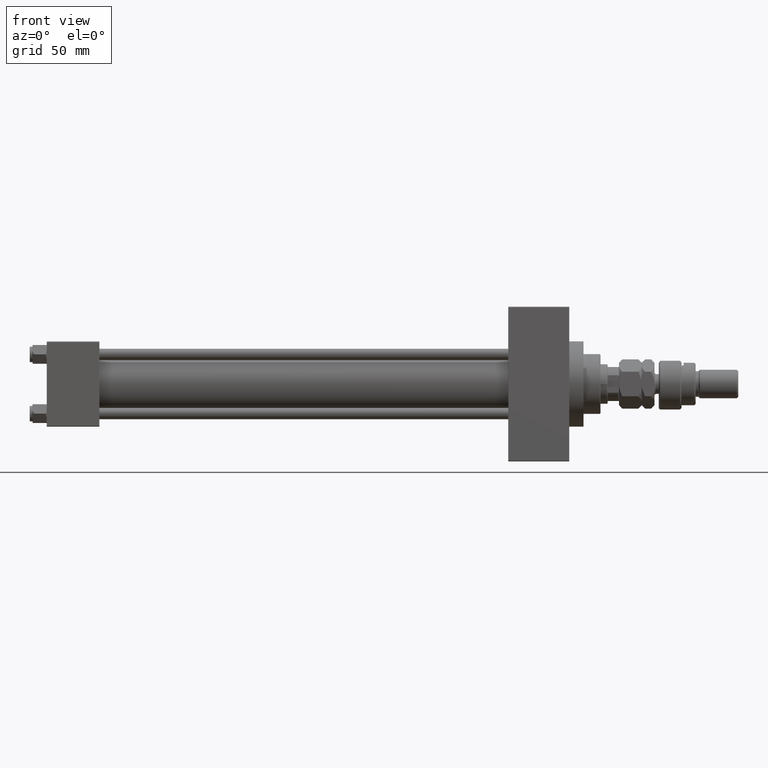
[diagram: clean part render]
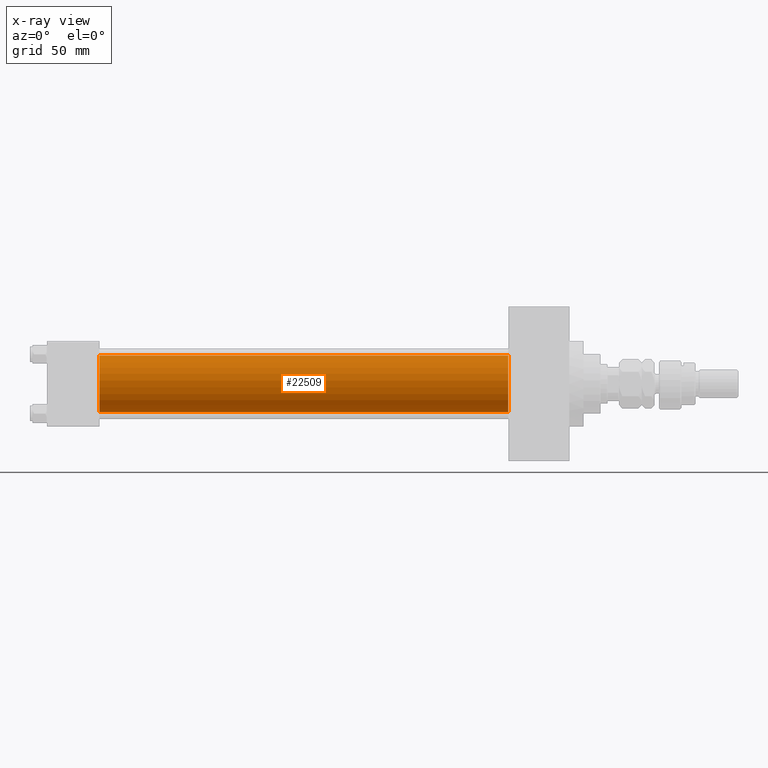
[diagram: x-ray — body ghosted, one internal face saturated and labeled with its STEP entity id]
A machine part, front view, then the same camera in x-ray: the body is ghosted and one INTERNAL B-rep face — a face not visible from any outside direction — is saturated and labeled: STEP entity #22509.
In plain terms, the highlighted cylindrical surface (edge-blend (fillet) strip) has radius 20 mm, axis along (-1, -0, -0).
Its self-contained STEP definition (entity closure, byte-faithful):
#512 = ORIENTED_EDGE ( 'NONE', *, *, #46772, .T. ) ;
#1368 = DIRECTION ( 'NONE',  ( -1.000000000000000000, -0.000000000000000000, -0.000000000000000000 ) ) ;
#2921 = LINE ( 'NONE', #33998, #12075 ) ;
#3672 = VECTOR ( 'NONE', #1368, 1000.000000000000000 ) ;
#6452 = EDGE_CURVE ( 'NONE', #35648, #7978, #44047, .T. ) ;
#7978 = VERTEX_POINT ( 'NONE', #36920 ) ;
#8747 = LINE ( 'NONE', #24824, #3672 ) ;
#8800 = DIRECTION ( 'NONE',  ( 1.000000000000000000, 0.000000000000000000, 0.000000000000000000 ) ) ;
#9104 = DIRECTION ( 'NONE',  ( 0.000000000000000000, 0.000000000000000000, -1.000000000000000000 ) ) ;
#9751 = DIRECTION ( 'NONE',  ( 0.000000000000000000, 0.000000000000000000, 1.000000000000000000 ) ) ;
#12075 = VECTOR ( 'NONE', #34254, 1000.000000000000000 ) ;
#13708 = CARTESIAN_POINT ( 'NONE',  ( 324.9999999999999432, -2.602085213965210642E-15, 0.000000000000000000 ) ) ;
#16290 = VERTEX_POINT ( 'NONE', #30193 ) ;
#16613 = ORIENTED_EDGE ( 'NONE', *, *, #28558, .F. ) ;
#21866 = CYLINDRICAL_SURFACE ( 'NONE', #49877, 20.00000000000000000 ) ;
#22509 = ADVANCED_FACE ( 'NONE', ( #49827 ), #21866, .F. ) ;
#22993 = AXIS2_PLACEMENT_3D ( 'NONE', #48875, #8800, #24874 ) ;
#24824 = CARTESIAN_POINT ( 'NONE',  ( 324.9999999999999432, -2.602085213965210642E-15, 20.00000000000000000 ) ) ;
#24874 = DIRECTION ( 'NONE',  ( 0.000000000000000000, 0.000000000000000000, -1.000000000000000000 ) ) ;
#25908 = ORIENTED_EDGE ( 'NONE', *, *, #27839, .F. ) ;
#27839 = EDGE_CURVE ( 'NONE', #16290, #50967, #28020, .T. ) ;
#28020 = CIRCLE ( 'NONE', #22993, 20.00000000000000000 ) ;
#28297 = CARTESIAN_POINT ( 'NONE',  ( 324.9999999999999432, -2.602085213965210642E-15, 20.00000000000000000 ) ) ;
#28558 = EDGE_CURVE ( 'NONE', #35648, #16290, #8747, .T. ) ;
#28887 = CARTESIAN_POINT ( 'NONE',  ( 37.00000000000000000, -1.527916156705042519E-16, -20.00000000000000000 ) ) ;
#29128 = CARTESIAN_POINT ( 'NONE',  ( 324.9999999999999432, -2.602085213965210642E-15, 0.000000000000000000 ) ) ;
#30193 = CARTESIAN_POINT ( 'NONE',  ( 37.00000000000000000, -2.602085213965210642E-15, 20.00000000000000000 ) ) ;
#33998 = CARTESIAN_POINT ( 'NONE',  ( 324.9999999999999432, -1.527916156705042519E-16, -20.00000000000000000 ) ) ;
#34254 = DIRECTION ( 'NONE',  ( -1.000000000000000000, -0.000000000000000000, -0.000000000000000000 ) ) ;
#35648 = VERTEX_POINT ( 'NONE', #28297 ) ;
#36920 = CARTESIAN_POINT ( 'NONE',  ( 324.9999999999999432, -1.527916156705042519E-16, -20.00000000000000000 ) ) ;
#38953 = EDGE_LOOP ( 'NONE', ( #46415, #512, #25908, #16613 ) ) ;
#44047 = CIRCLE ( 'NONE', #49964, 20.00000000000000000 ) ;
#45221 = DIRECTION ( 'NONE',  ( 1.000000000000000000, 0.000000000000000000, 0.000000000000000000 ) ) ;
#45858 = DIRECTION ( 'NONE',  ( -1.000000000000000000, -0.000000000000000000, -0.000000000000000000 ) ) ;
#46415 = ORIENTED_EDGE ( 'NONE', *, *, #6452, .T. ) ;
#46772 = EDGE_CURVE ( 'NONE', #7978, #50967, #2921, .T. ) ;
#48875 = CARTESIAN_POINT ( 'NONE',  ( 37.00000000000000000, -2.602085213965210642E-15, 0.000000000000000000 ) ) ;
#49827 = FACE_OUTER_BOUND ( 'NONE', #38953, .T. ) ;
#49877 = AXIS2_PLACEMENT_3D ( 'NONE', #13708, #45858, #9751 ) ;
#49964 = AXIS2_PLACEMENT_3D ( 'NONE', #29128, #45221, #9104 ) ;
#50967 = VERTEX_POINT ( 'NONE', #28887 ) ;